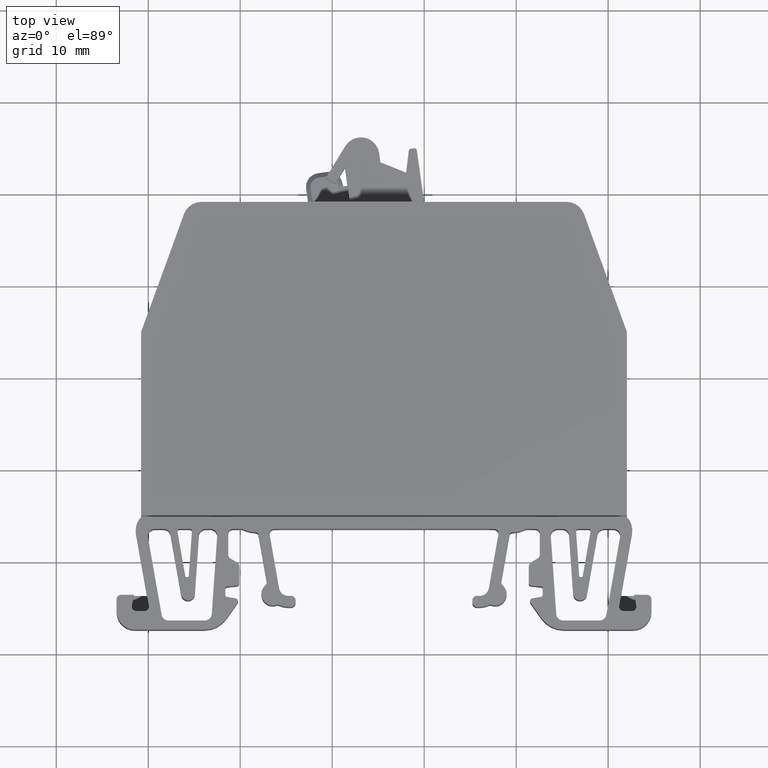
[diagram: clean part render]
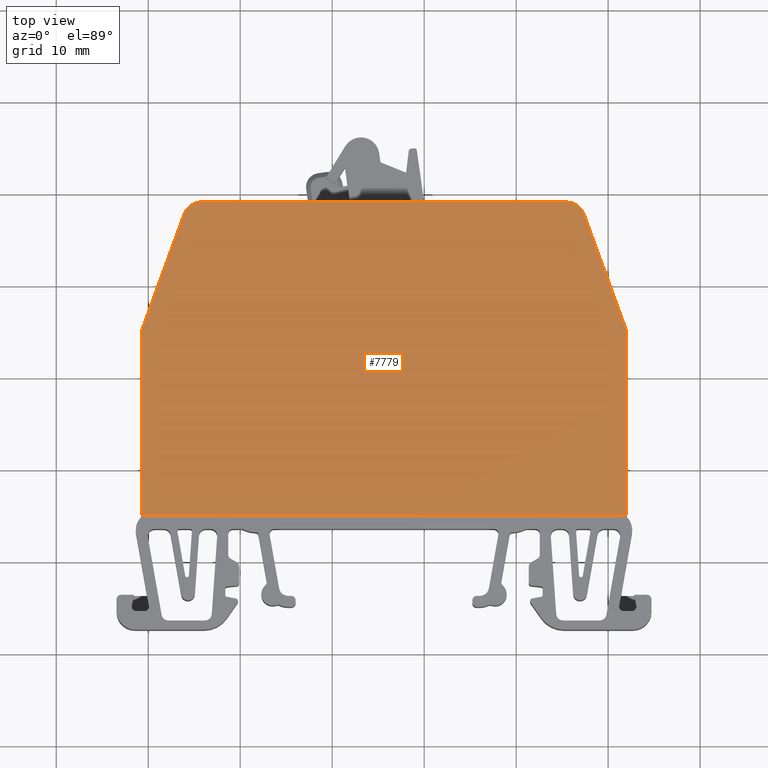
[diagram: same view with one face highlighted and labeled with its STEP entity id]
A machine part, top view. The second image highlights one B-rep face of the part: STEP entity #7779.
In plain terms, the highlighted planar face has unit normal (0, 0, 1).
Its self-contained STEP definition (entity closure, byte-faithful):
#4987 = DIRECTION ( 'NONE',  ( 1.000000000000000000, 2.763959362287737300E-014, 0.0000000000000000000 ) ) ;
#4990 = DIRECTION ( 'NONE',  ( 0.3419620949687428000, -0.9397137466295725200, -0.0000000000000000000 ) ) ;
#5005 = LINE ( 'NONE', #5015, #12811 ) ;
#5009 = DIRECTION ( 'NONE',  ( -0.0000000000000000000, -0.0000000000000000000, -1.000000000000000000 ) ) ;
#5014 = CARTESIAN_POINT ( 'NONE',  ( 535.7755960330605400, 287.0702665175990700, 8.342477920648988700 ) ) ;
#5015 = CARTESIAN_POINT ( 'NONE',  ( 582.0320559111487500, 255.1571495366066200, 8.342477920649043800 ) ) ;
#5023 = LINE ( 'NONE', #5024, #12791 ) ;
#5024 = CARTESIAN_POINT ( 'NONE',  ( 582.0320559111467000, 274.9617252141488300, 8.342477920649043800 ) ) ;
#5025 = DIRECTION ( 'NONE',  ( 1.277317721086875500E-013, -1.000000000000000000, -0.0000000000000000000 ) ) ;
#5030 = LINE ( 'NONE', #5069, #12848 ) ;
#5032 = DIRECTION ( 'NONE',  ( 0.3419620949687250900, 0.9397137466295790700, -0.0000000000000000000 ) ) ;
#5060 = DIRECTION ( 'NONE',  ( -0.0000000000000000000, -0.0000000000000000000, -1.000000000000000000 ) ) ;
#5069 = CARTESIAN_POINT ( 'NONE',  ( 533.8882820365166700, 287.7570606082854300, 8.342477920648988700 ) ) ;
#5071 = DIRECTION ( 'NONE',  ( 1.000000000000000000, 0.0000000000000000000, 0.0000000000000000000 ) ) ;
#5072 = CARTESIAN_POINT ( 'NONE',  ( 575.4885157894668700, 287.0702665175990700, 8.342477920648988700 ) ) ;
#5091 = LINE ( 'NONE', #5119, #12799 ) ;
#5092 = DIRECTION ( 'NONE',  ( -2.208881972746816700E-013, 1.000000000000000000, -0.0000000000000000000 ) ) ;
#5119 = CARTESIAN_POINT ( 'NONE',  ( 529.2320559113786700, 274.9617252141451300, 8.342477920648988700 ) ) ;
#5123 = CARTESIAN_POINT ( 'NONE',  ( 529.2320559113786700, 254.9771495366066200, 8.342477920648988700 ) ) ;
#5124 = DIRECTION ( 'NONE',  ( 1.000000000000000000, -8.646616774788220500E-014, -0.0000000000000000000 ) ) ;
#5125 = DIRECTION ( 'NONE',  ( -1.000000000000000000, -0.0000000000000000000, -0.0000000000000000000 ) ) ;
#5135 = CARTESIAN_POINT ( 'NONE',  ( 575.4885157894668700, 289.0786589704204100, 8.342477920648988700 ) ) ;
#5140 = LINE ( 'NONE', #5123, #12855 ) ;
#5159 = LINE ( 'NONE', #5135, #12863 ) ;
#5269 = DIRECTION ( 'NONE',  ( 1.000000000000000000, 0.0000000000000000000, -0.0000000000000000000 ) ) ;
#5294 = CARTESIAN_POINT ( 'NONE',  ( 557.9318073852269900, 286.1745718319869500, 8.342477920648990500 ) ) ;
#5304 = DIRECTION ( 'NONE',  ( 0.0000000000000000000, 0.0000000000000000000, 1.000000000000000000 ) ) ;
#5307 = PLANE ( 'NONE',  #12730 ) ;
#5320 = FACE_OUTER_BOUND ( 'NONE', #12049, .T. ) ;
#7688 = EDGE_CURVE ( 'NONE', #14769, #14770, #12853, .T. ) ;
#7694 = EDGE_CURVE ( 'NONE', #14760, #14780, #5023, .T. ) ;
#7695 = EDGE_CURVE ( 'NONE', #14780, #14789, #5005, .T. ) ;
#7706 = EDGE_CURVE ( 'NONE', #14802, #14760, #12822, .T. ) ;
#7711 = EDGE_CURVE ( 'NONE', #14803, #14769, #5030, .T. ) ;
#7721 = EDGE_CURVE ( 'NONE', #14771, #14803, #5091, .T. ) ;
#7729 = EDGE_CURVE ( 'NONE', #14789, #14771, #5140, .T. ) ;
#7734 = EDGE_CURVE ( 'NONE', #14770, #14802, #5159, .T. ) ;
#7779 = ADVANCED_FACE ( 'NONE', ( #5320 ), #5307, .T. ) ;
#12049 = EDGE_LOOP ( 'NONE', ( #15142, #15136, #15109, #15150, #15152, #15057, #15065, #15076 ) ) ;
#12581 = CARTESIAN_POINT ( 'NONE',  ( 582.0320559111478400, 274.9617252141456400, 8.342477920649043800 ) ) ;
#12595 = CARTESIAN_POINT ( 'NONE',  ( 582.0320559111487500, 254.9771495366066200, 8.342477920649017200 ) ) ;
#12616 = CARTESIAN_POINT ( 'NONE',  ( 577.3758297860100600, 287.7570606082853100, 8.342477920649022500 ) ) ;
#12619 = CARTESIAN_POINT ( 'NONE',  ( 533.8882820365166700, 287.7570606082855400, 8.342477920648988700 ) ) ;
#12621 = CARTESIAN_POINT ( 'NONE',  ( 535.7755960330606500, 289.0786589704238200, 8.342477920648988700 ) ) ;
#12635 = CARTESIAN_POINT ( 'NONE',  ( 529.2320559113831000, 254.9771495366066200, 8.342477920648988700 ) ) ;
#12649 = CARTESIAN_POINT ( 'NONE',  ( 575.4885157894669900, 289.0786589704204100, 8.342477920648988700 ) ) ;
#12685 = CARTESIAN_POINT ( 'NONE',  ( 529.2320559113788900, 274.9617252141450200, 8.342477920648988700 ) ) ;
#12730 = AXIS2_PLACEMENT_3D ( 'NONE', #5294, #5304, #5269 ) ;
#12791 = VECTOR ( 'NONE', #4990, 1000.000000000000100 ) ;
#12799 = VECTOR ( 'NONE', #5092, 1000.000000000000000 ) ;
#12811 = VECTOR ( 'NONE', #5025, 1000.000000000000000 ) ;
#12822 = CIRCLE ( 'NONE', #12825, 2.008392452821250500 ) ;
#12825 = AXIS2_PLACEMENT_3D ( 'NONE', #5072, #5060, #5071 ) ;
#12848 = VECTOR ( 'NONE', #5032, 1000.000000000000000 ) ;
#12852 = AXIS2_PLACEMENT_3D ( 'NONE', #5014, #5009, #4987 ) ;
#12853 = CIRCLE ( 'NONE', #12852, 2.008392452822138600 ) ;
#12855 = VECTOR ( 'NONE', #5125, 1000.000000000000000 ) ;
#12863 = VECTOR ( 'NONE', #5124, 1000.000000000000000 ) ;
#14760 = VERTEX_POINT ( 'NONE', #12616 ) ;
#14769 = VERTEX_POINT ( 'NONE', #12619 ) ;
#14770 = VERTEX_POINT ( 'NONE', #12621 ) ;
#14771 = VERTEX_POINT ( 'NONE', #12635 ) ;
#14780 = VERTEX_POINT ( 'NONE', #12581 ) ;
#14789 = VERTEX_POINT ( 'NONE', #12595 ) ;
#14802 = VERTEX_POINT ( 'NONE', #12649 ) ;
#14803 = VERTEX_POINT ( 'NONE', #12685 ) ;
#15057 = ORIENTED_EDGE ( 'NONE', *, *, #7706, .F. ) ;
#15065 = ORIENTED_EDGE ( 'NONE', *, *, #7734, .F. ) ;
#15076 = ORIENTED_EDGE ( 'NONE', *, *, #7688, .F. ) ;
#15109 = ORIENTED_EDGE ( 'NONE', *, *, #7729, .F. ) ;
#15136 = ORIENTED_EDGE ( 'NONE', *, *, #7721, .F. ) ;
#15142 = ORIENTED_EDGE ( 'NONE', *, *, #7711, .F. ) ;
#15150 = ORIENTED_EDGE ( 'NONE', *, *, #7695, .F. ) ;
#15152 = ORIENTED_EDGE ( 'NONE', *, *, #7694, .F. ) ;